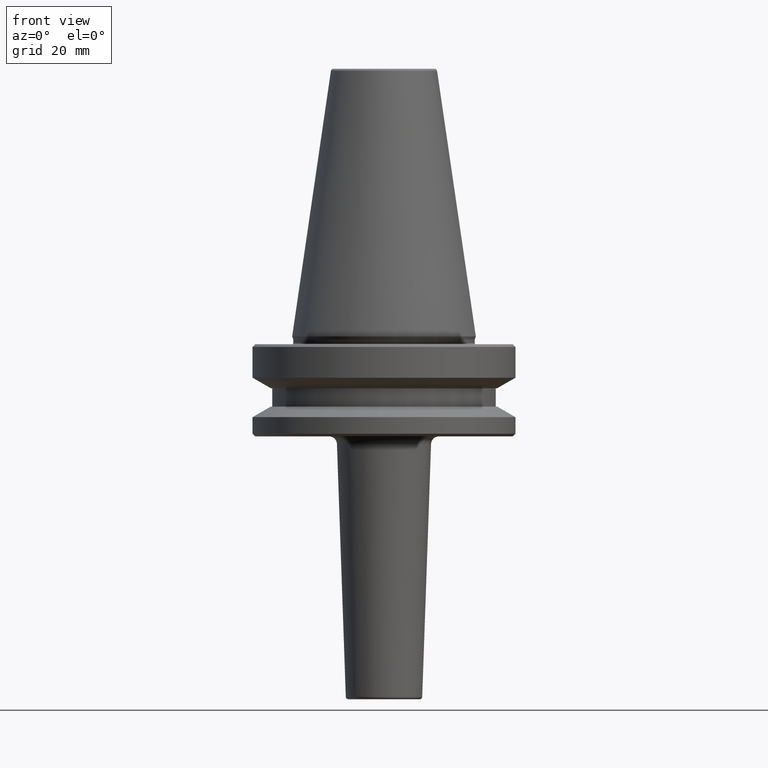
[diagram: clean part render]
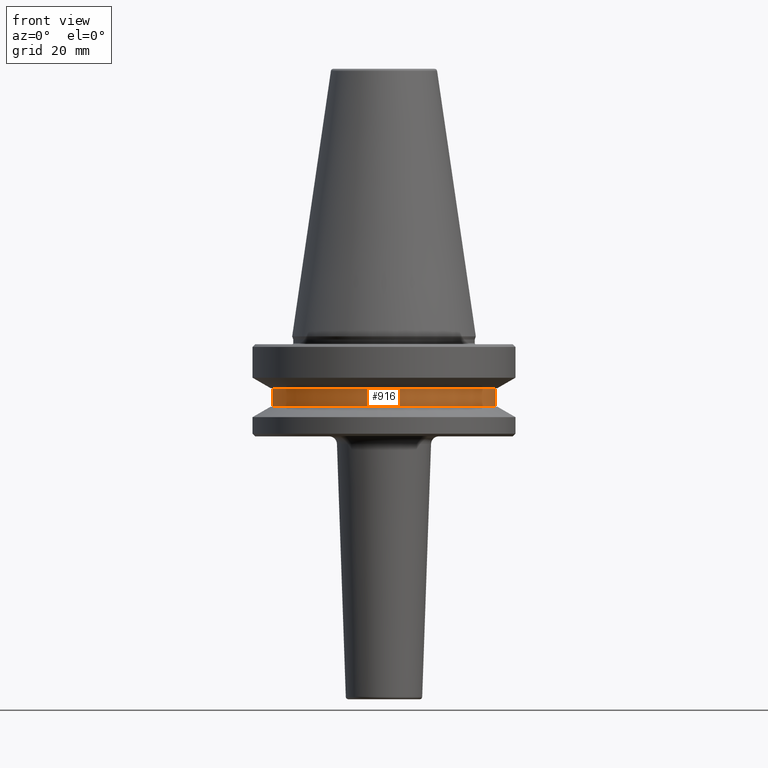
[diagram: same view with one face highlighted and labeled with its STEP entity id]
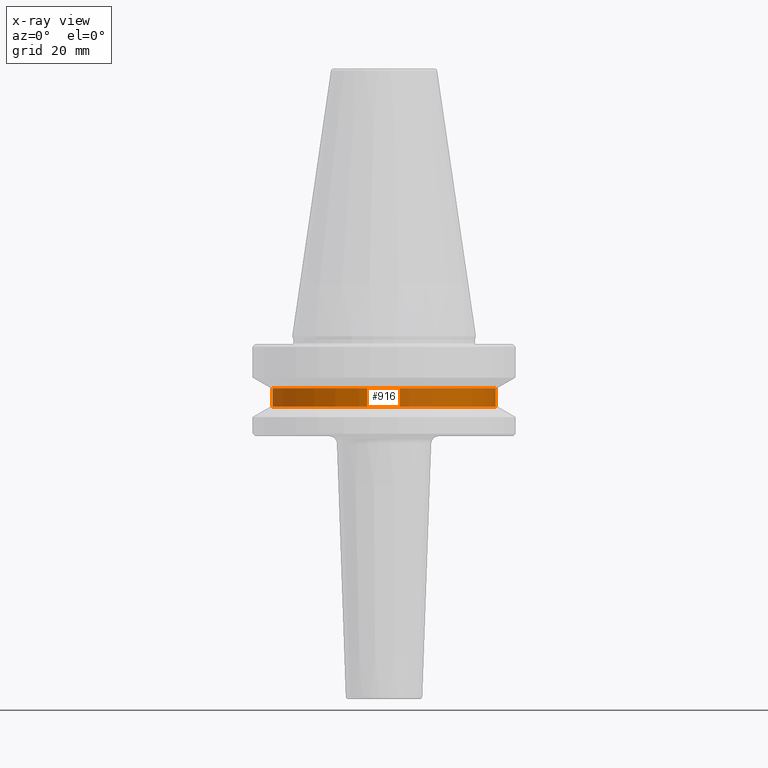
[diagram: x-ray of the same camera — body ghosted, the highlighted face saturated]
A machine part, front view. The second image highlights one B-rep face of the part: STEP entity #916.
The next image is the same camera in x-ray: the body ghosted, the highlighted face saturated — about 0% of this face is hidden behind the body in this view.
In plain terms, the highlighted cylindrical surface (partial cylindrical patch) has radius 42.5 mm, axis along (-0, -0, 1).
Its self-contained STEP definition (entity closure, byte-faithful):
#89 = LINE ( 'NONE', #112, #336 ) ;
#112 = CARTESIAN_POINT ( 'NONE',  ( -42.50000000000000000, 5.204748896376250900E-015, 124.5046326327850600 ) ) ;
#119 = EDGE_CURVE ( 'NONE', #445, #279, #497, .T. ) ;
#174 = DIRECTION ( 'NONE',  ( -0.0000000000000000000, -0.0000000000000000000, 1.000000000000000000 ) ) ;
#221 = AXIS2_PLACEMENT_3D ( 'NONE', #822, #573, #292 ) ;
#238 = CARTESIAN_POINT ( 'NONE',  ( 0.0000000000000000000, 0.0000000000000000000, -19.70000000000001000 ) ) ;
#272 = DIRECTION ( 'NONE',  ( 1.000000000000000000, 0.0000000000000000000, 0.0000000000000000000 ) ) ;
#274 = EDGE_LOOP ( 'NONE', ( #740, #374, #951, #524 ) ) ;
#279 = VERTEX_POINT ( 'NONE', #358 ) ;
#292 = DIRECTION ( 'NONE',  ( 1.000000000000000000, 0.0000000000000000000, 0.0000000000000000000 ) ) ;
#326 = CARTESIAN_POINT ( 'NONE',  ( -42.50000000000000000, 5.204748896376250900E-015, -19.70000000000001000 ) ) ;
#333 = EDGE_CURVE ( 'NONE', #886, #534, #518, .T. ) ;
#336 = VECTOR ( 'NONE', #645, 1000.000000000000000 ) ;
#358 = CARTESIAN_POINT ( 'NONE',  ( 42.50000000000000000, 0.0000000000000000000, -19.70000000000001000 ) ) ;
#371 = CARTESIAN_POINT ( 'NONE',  ( 42.50000000000000000, 0.0000000000000000000, -26.69999999999998900 ) ) ;
#374 = ORIENTED_EDGE ( 'NONE', *, *, #333, .T. ) ;
#411 = DIRECTION ( 'NONE',  ( -0.0000000000000000000, -0.0000000000000000000, 1.000000000000000000 ) ) ;
#445 = VERTEX_POINT ( 'NONE', #326 ) ;
#488 = CARTESIAN_POINT ( 'NONE',  ( -42.50000000000000000, 5.204748896376250900E-015, -26.69999999999998900 ) ) ;
#497 = CIRCLE ( 'NONE', #971, 42.50000000000000000 ) ;
#504 = FACE_OUTER_BOUND ( 'NONE', #274, .T. ) ;
#518 = CIRCLE ( 'NONE', #221, 42.50000000000000000 ) ;
#524 = ORIENTED_EDGE ( 'NONE', *, *, #119, .F. ) ;
#534 = VERTEX_POINT ( 'NONE', #371 ) ;
#557 = AXIS2_PLACEMENT_3D ( 'NONE', #803, #411, #272 ) ;
#573 = DIRECTION ( 'NONE',  ( -0.0000000000000000000, -0.0000000000000000000, 1.000000000000000000 ) ) ;
#599 = CYLINDRICAL_SURFACE ( 'NONE', #557, 42.50000000000000000 ) ;
#629 = EDGE_CURVE ( 'NONE', #534, #279, #687, .T. ) ;
#637 = DIRECTION ( 'NONE',  ( 1.000000000000000000, 0.0000000000000000000, 0.0000000000000000000 ) ) ;
#645 = DIRECTION ( 'NONE',  ( -0.0000000000000000000, -0.0000000000000000000, 1.000000000000000000 ) ) ;
#687 = LINE ( 'NONE', #829, #833 ) ;
#740 = ORIENTED_EDGE ( 'NONE', *, *, #941, .F. ) ;
#803 = CARTESIAN_POINT ( 'NONE',  ( 0.0000000000000000000, 0.0000000000000000000, 124.5046326327850600 ) ) ;
#822 = CARTESIAN_POINT ( 'NONE',  ( 0.0000000000000000000, 0.0000000000000000000, -26.69999999999998900 ) ) ;
#823 = DIRECTION ( 'NONE',  ( -0.0000000000000000000, -0.0000000000000000000, 1.000000000000000000 ) ) ;
#829 = CARTESIAN_POINT ( 'NONE',  ( 42.50000000000000000, 0.0000000000000000000, 124.5046326327850600 ) ) ;
#833 = VECTOR ( 'NONE', #823, 1000.000000000000000 ) ;
#886 = VERTEX_POINT ( 'NONE', #488 ) ;
#916 = ADVANCED_FACE ( 'NONE', ( #504 ), #599, .T. ) ;
#941 = EDGE_CURVE ( 'NONE', #886, #445, #89, .T. ) ;
#951 = ORIENTED_EDGE ( 'NONE', *, *, #629, .T. ) ;
#971 = AXIS2_PLACEMENT_3D ( 'NONE', #238, #174, #637 ) ;